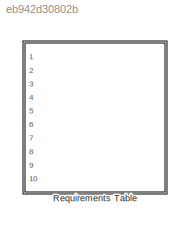
MODEL slx_eb942d30802b
KIND model
CONFIG AbsTol = auto
CONFIG EnableMultiTasking = on
CONFIG FixedStep = 1e-3
CONFIG MaxStep = auto
CONFIG MinStep = auto
CONFIG RelTol = 1e-3
CONFIG SampleTimeConstraint = Unconstrained
CONFIG SolverName = FixedStepAuto
CONFIG StartTime = 0.0
CONFIG StopTime = 10.0
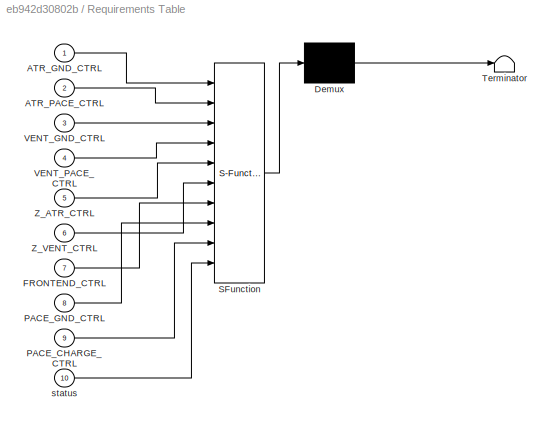
BLOCK [SubSystem] Requirements Table
  ErrorFcn = Stateflow.Translate.translate
  PermitHierarchicalResolution = ExplicitOnly
  Ports = [10]
  RequestExecContextInheritance = off
  SFBlockType = Requirements Table
  TreatAsAtomicUnit = on
BLOCK [Demux] Requirements Table/ Demux 
  Outputs = 1
  Ports = [1, 1]
BLOCK [S-Function] Requirements Table/ SFunction 
  EnableBusSupport = off
  FunctionName = sf_sfun
  PortCounts = [10 1]
  Ports = [10, 1]
  SFcnIsStateOwnerBlock = off
  SFunctionDeploymentMode = off
  Tag = Stateflow S-Function 3
BLOCK [Terminator] Requirements Table/ Terminator 
BLOCK [Inport] Requirements Table/ATR_GND_CTRL
BLOCK [Inport] Requirements Table/ATR_PACE_CTRL
  Port = 2
BLOCK [Inport] Requirements Table/FRONTEND_CTRL
  Port = 7
BLOCK [Inport] Requirements Table/PACE_CHARGE_CTRL
  Port = 9
BLOCK [Inport] Requirements Table/PACE_GND_CTRL
  Port = 8
BLOCK [Inport] Requirements Table/VENT_GND_CTRL
  Port = 3
BLOCK [Inport] Requirements Table/VENT_PACE_CTRL
  Port = 4
BLOCK [Inport] Requirements Table/Z_ATR_CTRL
  Port = 5
BLOCK [Inport] Requirements Table/Z_VENT_CTRL
  Port = 6
BLOCK [Inport] Requirements Table/status
  Port = 10
CHART Requirements Table states=0 transitions=128
CHART  states=0 transitions=0
